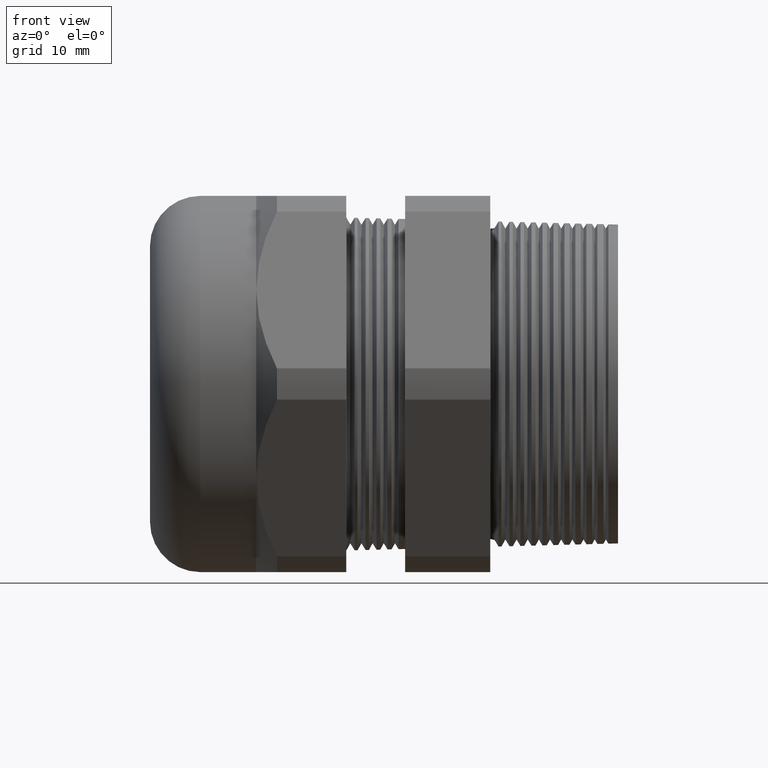
[diagram: clean part render]
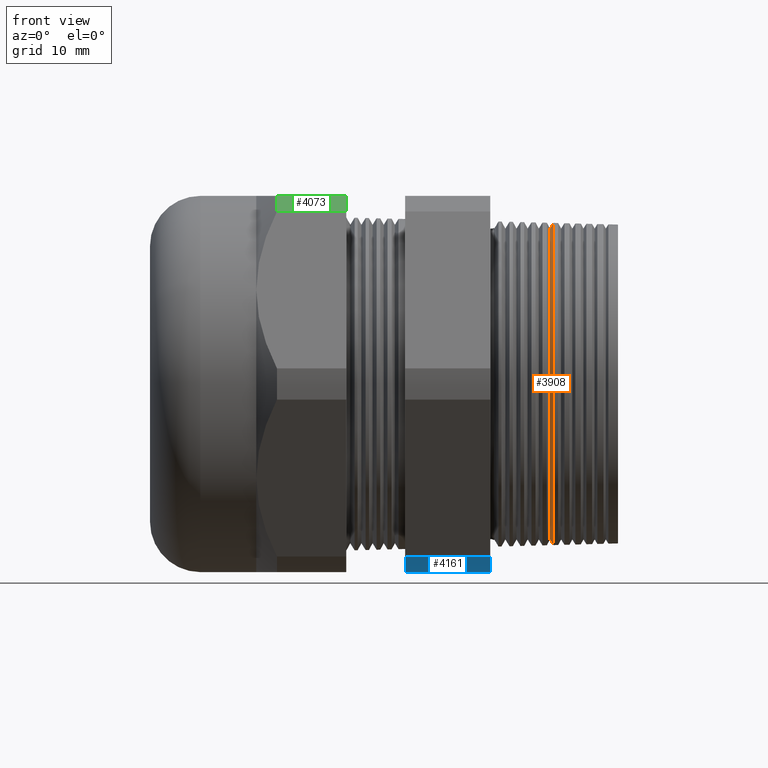
[diagram: same view with three faces highlighted in distinct colors, each labeled with its STEP entity id]
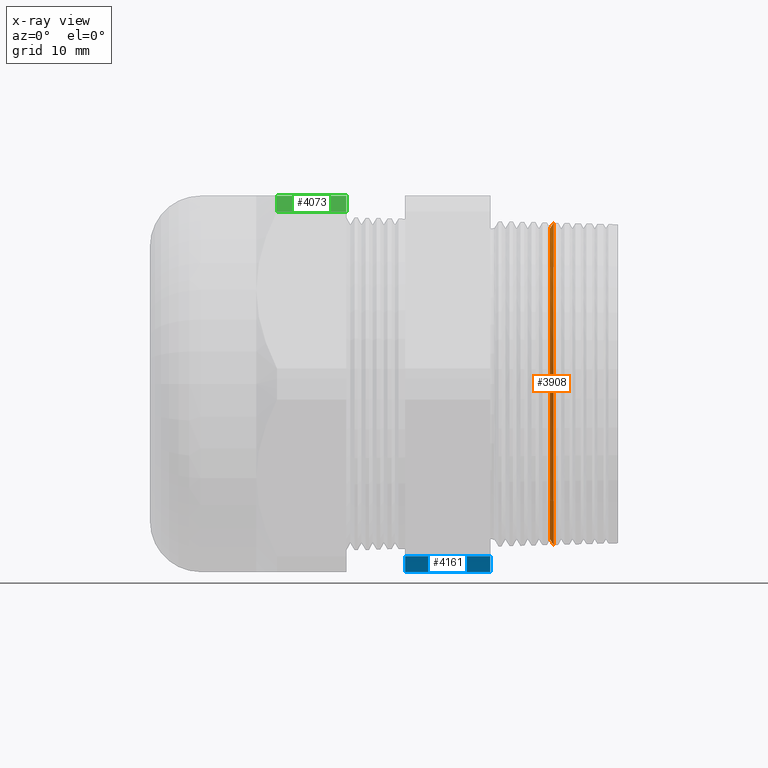
[diagram: x-ray of the same camera — body ghosted, the three highlighted faces saturated]
A machine part, front view with three faces highlighted in distinct colors.
The next image is the same camera in x-ray (body ghosted, the three faces saturated) — at least one of them is partly hidden behind the body in this view.
Their STEP definitions:

[orange] entity #3908 — the highlighted conical surface has half-angle 58.5 deg.
#46 = ORIENTED_EDGE ( 'NONE', *, *, #3704, .T. ) ;
#573 = VERTEX_POINT ( 'NONE', #1802 ) ;
#575 = EDGE_CURVE ( 'NONE', #650, #573, #1801, .T. ) ;
#650 = VERTEX_POINT ( 'NONE', #1901 ) ;
#651 = VERTEX_POINT ( 'NONE', #1900 ) ;
#653 = VERTEX_POINT ( 'NONE', #1899 ) ;
#654 = EDGE_CURVE ( 'NONE', #651, #653, #1959, .T. ) ;
#1798 = DIRECTION ( 'NONE',  ( 0.5224985647159471300, 0.0000000000000000000, -0.8526401643540931800 ) ) ;
#1799 = VECTOR ( 'NONE', #1798, 39.37007874015748900 ) ;
#1800 = CARTESIAN_POINT ( 'NONE',  ( 0.02203901909456593100, 0.0000000000000000000, -0.8634748412764126100 ) ) ;
#1801 = LINE ( 'NONE', #1800, #1799 ) ;
#1802 = CARTESIAN_POINT ( 'NONE',  ( 0.04127626428481579600, 1.095896218214146500E-016, -0.8948671722958425600 ) ) ;
#1899 = CARTESIAN_POINT ( 'NONE',  ( 0.04127626428481579600, 0.0000000000000000000, 0.8948671722958425600 ) ) ;
#1900 = CARTESIAN_POINT ( 'NONE',  ( 0.02203901909456593100, 0.0000000000000000000, 0.8634748412764126100 ) ) ;
#1901 = CARTESIAN_POINT ( 'NONE',  ( 0.02203901909456593100, 1.077264102893640000E-016, -0.8634748412764126100 ) ) ;
#1956 = DIRECTION ( 'NONE',  ( 0.5224985647159471300, 1.044183048100713200E-016, 0.8526401643540931800 ) ) ;
#1957 = VECTOR ( 'NONE', #1956, 39.37007874015748900 ) ;
#1958 = CARTESIAN_POINT ( 'NONE',  ( 0.02203901909456593100, 1.057451700513427500E-016, 0.8634748412764126100 ) ) ;
#1959 = LINE ( 'NONE', #1958, #1957 ) ;
#2360 = DIRECTION ( 'NONE',  ( 0.0000000000000000000, 0.0000000000000000000, -1.000000000000000000 ) ) ;
#2361 = DIRECTION ( 'NONE',  ( -1.000000000000000000, 0.0000000000000000000, 0.0000000000000000000 ) ) ;
#2362 = CARTESIAN_POINT ( 'NONE',  ( 0.04127626428481579600, 0.0000000000000000000, 0.0000000000000000000 ) ) ;
#2363 = AXIS2_PLACEMENT_3D ( 'NONE', #2362, #2361, #2360 ) ;
#2364 = CIRCLE ( 'NONE', #2363, 0.8948671722958425600 ) ;
#2626 = FACE_OUTER_BOUND ( 'NONE', #3904, .T. ) ;
#2681 = DIRECTION ( 'NONE',  ( 0.0000000000000000000, 0.0000000000000000000, -1.000000000000000000 ) ) ;
#2682 = DIRECTION ( 'NONE',  ( 1.000000000000000000, 0.0000000000000000000, 0.0000000000000000000 ) ) ;
#2683 = AXIS2_PLACEMENT_3D ( 'NONE', #2689, #2682, #2681 ) ;
#2684 = CIRCLE ( 'NONE', #2683, 0.8634748412764126100 ) ;
#2685 = DIRECTION ( 'NONE',  ( 0.0000000000000000000, 0.0000000000000000000, -1.000000000000000000 ) ) ;
#2686 = DIRECTION ( 'NONE',  ( 1.000000000000000000, 0.0000000000000000000, 0.0000000000000000000 ) ) ;
#2687 = CARTESIAN_POINT ( 'NONE',  ( 0.02203901909456593100, 0.0000000000000000000, 0.0000000000000000000 ) ) ;
#2688 = AXIS2_PLACEMENT_3D ( 'NONE', #2687, #2686, #2685 ) ;
#2689 = CARTESIAN_POINT ( 'NONE',  ( 0.02203901909456593100, 0.0000000000000000000, 0.0000000000000000000 ) ) ;
#2690 = CONICAL_SURFACE ( 'NONE', #2688, 0.8634748412764126100, 1.021017612416684800 ) ;
#3704 = EDGE_CURVE ( 'NONE', #573, #653, #2364, .T. ) ;
#3903 = ORIENTED_EDGE ( 'NONE', *, *, #575, .T. ) ;
#3904 = EDGE_LOOP ( 'NONE', ( #3906, #3905, #3903, #46 ) ) ;
#3905 = ORIENTED_EDGE ( 'NONE', *, *, #3911, .T. ) ;
#3906 = ORIENTED_EDGE ( 'NONE', *, *, #654, .F. ) ;
#3908 = ADVANCED_FACE ( 'NONE', ( #2626 ), #2690, .T. ) ;
#3911 = EDGE_CURVE ( 'NONE', #651, #650, #2684, .T. ) ;

[blue] entity #4161 — the highlighted cylindrical surface (partial cylindrical patch) has radius 29.4627 mm, axis along (-1, 0, 0).
#2812 = CARTESIAN_POINT ( 'NONE',  ( -0.7824399999999998000, -0.5034471198646384100, -1.045000000000000200 ) ) ;
#3010 = CARTESIAN_POINT ( 'NONE',  ( -0.3099999999999997200, -0.6532729870224186500, -0.9584979952648867700 ) ) ;
#3011 = CARTESIAN_POINT ( 'NONE',  ( -0.3099999999999997200, -0.5034471198646384100, -1.045000000000000200 ) ) ;
#3012 = DIRECTION ( 'NONE',  ( 0.0000000000000000000, 0.0000000000000000000, -1.000000000000000000 ) ) ;
#3013 = DIRECTION ( 'NONE',  ( 1.000000000000000000, 0.0000000000000000000, 0.0000000000000000000 ) ) ;
#3014 = CARTESIAN_POINT ( 'NONE',  ( -0.3100000000000000000, 0.0000000000000000000, 0.0000000000000000000 ) ) ;
#3015 = AXIS2_PLACEMENT_3D ( 'NONE', #3014, #3013, #3012 ) ;
#3016 = CIRCLE ( 'NONE', #3015, 1.159950000000000000 ) ;
#3114 = DIRECTION ( 'NONE',  ( -1.000000000000000000, 0.0000000000000000000, 0.0000000000000000000 ) ) ;
#3115 = VECTOR ( 'NONE', #3114, 39.37007874015748100 ) ;
#3116 = CARTESIAN_POINT ( 'NONE',  ( 0.4000000000000000800, -0.6532729870224186500, -0.9584979952648867700 ) ) ;
#3117 = DIRECTION ( 'NONE',  ( 0.0000000000000000000, 0.0000000000000000000, 1.000000000000000000 ) ) ;
#3118 = DIRECTION ( 'NONE',  ( -1.000000000000000000, 0.0000000000000000000, 0.0000000000000000000 ) ) ;
#3119 = CARTESIAN_POINT ( 'NONE',  ( 0.4000000000000000800, 0.0000000000000000000, 0.0000000000000000000 ) ) ;
#3120 = AXIS2_PLACEMENT_3D ( 'NONE', #3119, #3118, #3117 ) ;
#3121 = LINE ( 'NONE', #3116, #3115 ) ;
#3122 = CYLINDRICAL_SURFACE ( 'NONE', #3120, 1.159950000000000000 ) ;
#3123 = FACE_OUTER_BOUND ( 'NONE', #4156, .T. ) ;
#3124 = DIRECTION ( 'NONE',  ( -1.000000000000000000, 0.0000000000000000000, 0.0000000000000000000 ) ) ;
#3125 = VECTOR ( 'NONE', #3124, 39.37007874015748100 ) ;
#3126 = CARTESIAN_POINT ( 'NONE',  ( 0.4000000000000000800, -0.5034471198646384100, -1.045000000000000200 ) ) ;
#3127 = LINE ( 'NONE', #3126, #3125 ) ;
#3250 = CARTESIAN_POINT ( 'NONE',  ( -0.7824399999999998000, -0.6532729870224186500, -0.9584979952648867700 ) ) ;
#3270 = DIRECTION ( 'NONE',  ( 0.0000000000000000000, 0.0000000000000000000, 1.000000000000000000 ) ) ;
#3285 = DIRECTION ( 'NONE',  ( -1.000000000000000000, 0.0000000000000000000, 0.0000000000000000000 ) ) ;
#3286 = CARTESIAN_POINT ( 'NONE',  ( -0.7824400000000001400, 0.0000000000000000000, 0.0000000000000000000 ) ) ;
#3287 = AXIS2_PLACEMENT_3D ( 'NONE', #3286, #3285, #3270 ) ;
#3288 = CIRCLE ( 'NONE', #3287, 1.159950000000000000 ) ;
#4022 = VERTEX_POINT ( 'NONE', #2812 ) ;
#4112 = EDGE_CURVE ( 'NONE', #4115, #4113, #3016, .T. ) ;
#4113 = VERTEX_POINT ( 'NONE', #3011 ) ;
#4115 = VERTEX_POINT ( 'NONE', #3010 ) ;
#4153 = ORIENTED_EDGE ( 'NONE', *, *, #4112, .F. ) ;
#4155 = ORIENTED_EDGE ( 'NONE', *, *, #4273, .F. ) ;
#4156 = EDGE_LOOP ( 'NONE', ( #4157, #4155, #4159, #4153 ) ) ;
#4157 = ORIENTED_EDGE ( 'NONE', *, *, #4163, .T. ) ;
#4159 = ORIENTED_EDGE ( 'NONE', *, *, #4160, .F. ) ;
#4160 = EDGE_CURVE ( 'NONE', #4113, #4022, #3127, .T. ) ;
#4161 = ADVANCED_FACE ( 'NONE', ( #3123 ), #3122, .T. ) ;
#4163 = EDGE_CURVE ( 'NONE', #4115, #4259, #3121, .T. ) ;
#4259 = VERTEX_POINT ( 'NONE', #3250 ) ;
#4273 = EDGE_CURVE ( 'NONE', #4022, #4259, #3288, .T. ) ;

[green] entity #4073 — the highlighted cylindrical surface (partial cylindrical patch) has radius 29.4627 mm, axis along (-1, 0, 0).
#2866 = CARTESIAN_POINT ( 'NONE',  ( -1.109449999999999400, -0.6532729870224188700, 0.9584979952648864400 ) ) ;
#2869 = CARTESIAN_POINT ( 'NONE',  ( -1.494499999999999300, -0.6532729870224188700, 0.9584979952648864400 ) ) ;
#2876 = DIRECTION ( 'NONE',  ( 0.0000000000000000000, 0.0000000000000000000, -1.000000000000000000 ) ) ;
#2877 = DIRECTION ( 'NONE',  ( 1.000000000000000000, 0.0000000000000000000, 0.0000000000000000000 ) ) ;
#2878 = CARTESIAN_POINT ( 'NONE',  ( -1.109449999999999800, 0.0000000000000000000, 0.0000000000000000000 ) ) ;
#2879 = AXIS2_PLACEMENT_3D ( 'NONE', #2878, #2877, #2876 ) ;
#2880 = CIRCLE ( 'NONE', #2879, 1.159950000000000000 ) ;
#2899 = DIRECTION ( 'NONE',  ( -1.000000000000000000, 0.0000000000000000000, 0.0000000000000000000 ) ) ;
#2900 = VECTOR ( 'NONE', #2899, 39.37007874015748100 ) ;
#2901 = CARTESIAN_POINT ( 'NONE',  ( 0.4000000000000000800, -0.6532729870224188700, 0.9584979952648864400 ) ) ;
#2902 = LINE ( 'NONE', #2901, #2900 ) ;
#2915 = DIRECTION ( 'NONE',  ( 0.0000000000000000000, 0.0000000000000000000, 1.000000000000000000 ) ) ;
#2916 = DIRECTION ( 'NONE',  ( -1.000000000000000000, 0.0000000000000000000, 0.0000000000000000000 ) ) ;
#2917 = CARTESIAN_POINT ( 'NONE',  ( 0.4000000000000000800, 0.0000000000000000000, 0.0000000000000000000 ) ) ;
#2918 = AXIS2_PLACEMENT_3D ( 'NONE', #2917, #2916, #2915 ) ;
#2920 = CYLINDRICAL_SURFACE ( 'NONE', #2918, 1.159950000000000000 ) ;
#2921 = FACE_OUTER_BOUND ( 'NONE', #4065, .T. ) ;
#2923 = DIRECTION ( 'NONE',  ( -1.000000000000000000, 0.0000000000000000000, 0.0000000000000000000 ) ) ;
#2924 = VECTOR ( 'NONE', #2923, 39.37007874015748100 ) ;
#2925 = CARTESIAN_POINT ( 'NONE',  ( 0.4000000000000000800, -0.5034471198646400800, 1.044999999999999300 ) ) ;
#2926 = LINE ( 'NONE', #2925, #2924 ) ;
#2932 = CARTESIAN_POINT ( 'NONE',  ( -1.494499999999999300, -0.5034471198646400800, 1.044999999999999500 ) ) ;
#2933 = CARTESIAN_POINT ( 'NONE',  ( -1.109449999999999400, -0.5034471198646400800, 1.044999999999999300 ) ) ;
#2935 = DIRECTION ( 'NONE',  ( 0.0000000000000000000, 0.0000000000000000000, -1.000000000000000000 ) ) ;
#2936 = DIRECTION ( 'NONE',  ( 1.000000000000000000, 0.0000000000000000000, 0.0000000000000000000 ) ) ;
#2937 = CARTESIAN_POINT ( 'NONE',  ( -1.494499999999999300, 0.0000000000000000000, 0.0000000000000000000 ) ) ;
#2938 = AXIS2_PLACEMENT_3D ( 'NONE', #2937, #2936, #2935 ) ;
#2939 = CIRCLE ( 'NONE', #2938, 1.159950000000000000 ) ;
#4032 = VERTEX_POINT ( 'NONE', #2869 ) ;
#4033 = VERTEX_POINT ( 'NONE', #2866 ) ;
#4044 = EDGE_CURVE ( 'NONE', #4033, #4032, #2902, .T. ) ;
#4051 = ORIENTED_EDGE ( 'NONE', *, *, #4052, .F. ) ;
#4052 = EDGE_CURVE ( 'NONE', #4059, #4033, #2880, .T. ) ;
#4054 = EDGE_CURVE ( 'NONE', #4060, #4032, #2939, .T. ) ;
#4055 = ORIENTED_EDGE ( 'NONE', *, *, #4044, .F. ) ;
#4058 = ORIENTED_EDGE ( 'NONE', *, *, #4054, .T. ) ;
#4059 = VERTEX_POINT ( 'NONE', #2933 ) ;
#4060 = VERTEX_POINT ( 'NONE', #2932 ) ;
#4065 = EDGE_LOOP ( 'NONE', ( #4066, #4058, #4055, #4051 ) ) ;
#4066 = ORIENTED_EDGE ( 'NONE', *, *, #4070, .T. ) ;
#4070 = EDGE_CURVE ( 'NONE', #4059, #4060, #2926, .T. ) ;
#4073 = ADVANCED_FACE ( 'NONE', ( #2921 ), #2920, .T. ) ;